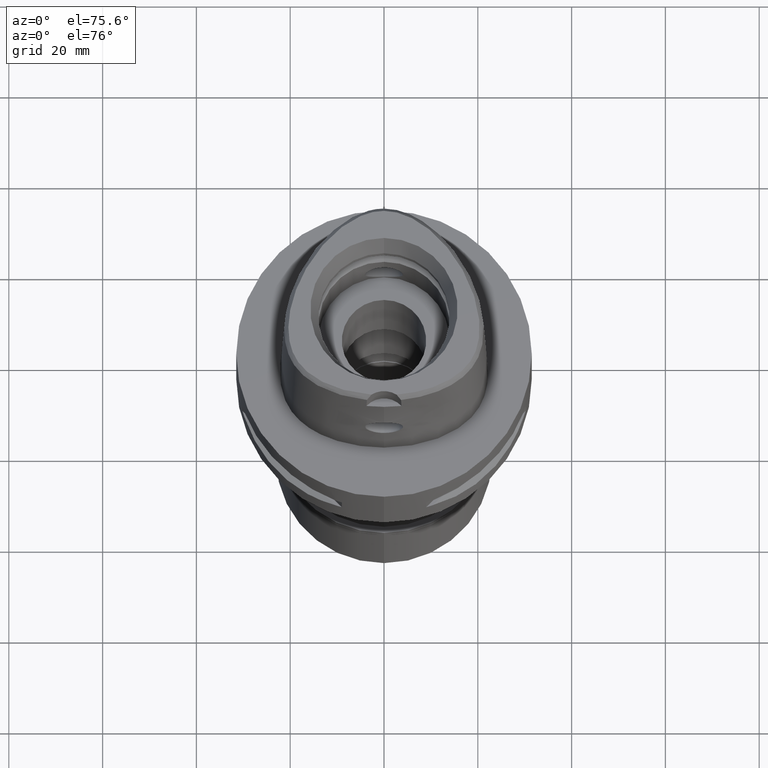
[diagram: clean part render]
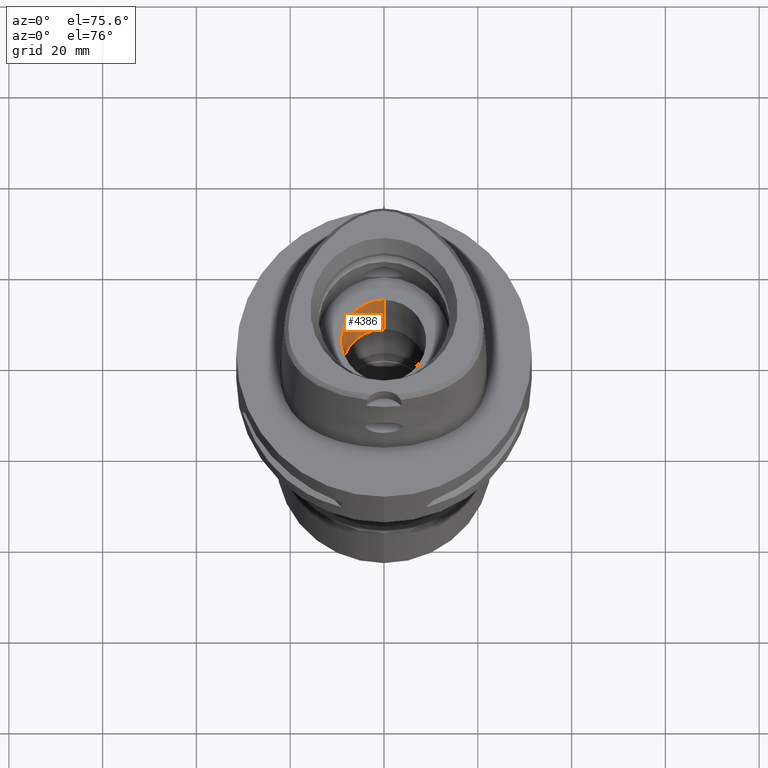
[diagram: same view with one face highlighted and labeled with its STEP entity id]
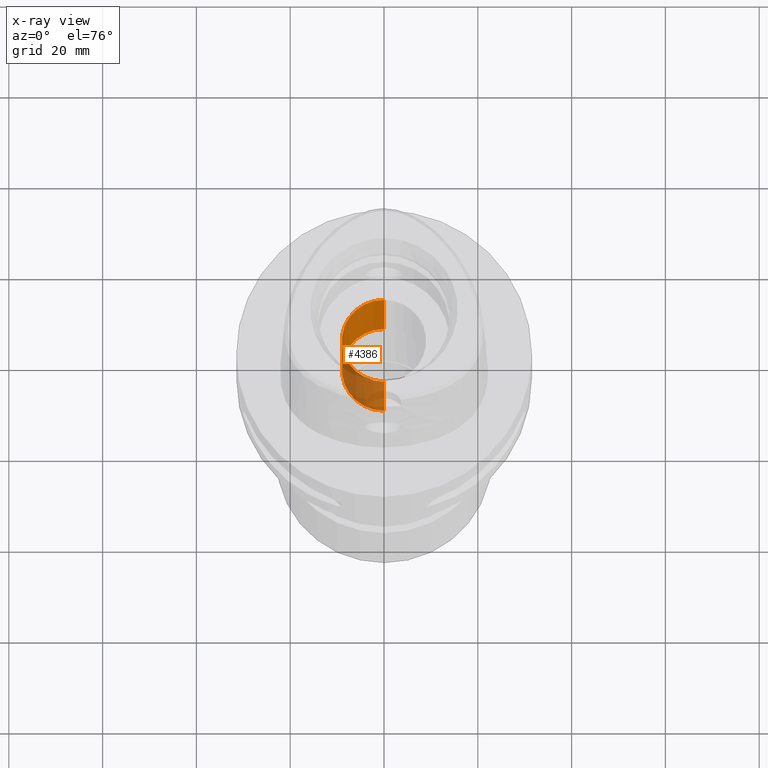
[diagram: x-ray of the same camera — body ghosted, the highlighted face saturated]
A machine part, auxiliary view. The second image highlights one B-rep face of the part: STEP entity #4386.
The next image is the same camera in x-ray: the body ghosted, the highlighted face saturated — about 45% of this face is hidden behind the body in this view.
In plain terms, the highlighted cylindrical surface (partial cylindrical patch) has radius 9 mm, axis along (0, 0, -1).
Its self-contained STEP definition (entity closure, byte-faithful):
#66 = CARTESIAN_POINT ( 'NONE',  ( 0.0000000000000000000, 0.0000000000000000000, 39.89999999999999858 ) ) ;
#152 = EDGE_CURVE ( 'NONE', #265, #4076, #370, .T. ) ;
#265 = VERTEX_POINT ( 'NONE', #2532 ) ;
#330 = EDGE_CURVE ( 'NONE', #2327, #4796, #3952, .T. ) ;
#370 = LINE ( 'NONE', #1901, #1014 ) ;
#399 = ORIENTED_EDGE ( 'NONE', *, *, #1331, .T. ) ;
#552 = DIRECTION ( 'NONE',  ( 0.0000000000000000000, 0.0000000000000000000, -1.000000000000000000 ) ) ;
#644 = EDGE_LOOP ( 'NONE', ( #2249, #4102, #399, #1155 ) ) ;
#797 = DIRECTION ( 'NONE',  ( 0.0000000000000000000, 0.0000000000000000000, -1.000000000000000000 ) ) ;
#821 = EDGE_CURVE ( 'NONE', #4076, #2327, #2820, .T. ) ;
#1003 = CARTESIAN_POINT ( 'NONE',  ( 0.0000000000000000000, -9.000000000000000000, 11.00000000000000000 ) ) ;
#1014 = VECTOR ( 'NONE', #3434, 1000.000000000000000 ) ;
#1155 = ORIENTED_EDGE ( 'NONE', *, *, #152, .T. ) ;
#1196 = DIRECTION ( 'NONE',  ( 0.0000000000000000000, -1.000000000000000000, 0.0000000000000000000 ) ) ;
#1208 = DIRECTION ( 'NONE',  ( 0.0000000000000000000, 0.0000000000000000000, 1.000000000000000000 ) ) ;
#1245 = CARTESIAN_POINT ( 'NONE',  ( 0.0000000000000000000, -9.000000000000000000, 11.00000000000000000 ) ) ;
#1331 = EDGE_CURVE ( 'NONE', #4796, #265, #2231, .T. ) ;
#1447 = CARTESIAN_POINT ( 'NONE',  ( 0.0000000000000000000, 9.000000000000000000, 11.00000000000000000 ) ) ;
#1829 = AXIS2_PLACEMENT_3D ( 'NONE', #66, #797, #1196 ) ;
#1901 = CARTESIAN_POINT ( 'NONE',  ( 0.0000000000000000000, 9.000000000000000000, -14.00000000000000000 ) ) ;
#1920 = AXIS2_PLACEMENT_3D ( 'NONE', #4339, #1208, #3209 ) ;
#2047 = CYLINDRICAL_SURFACE ( 'NONE', #1829, 9.000000000000000000 ) ;
#2231 = CIRCLE ( 'NONE', #4035, 9.000000000000000000 ) ;
#2249 = ORIENTED_EDGE ( 'NONE', *, *, #821, .T. ) ;
#2327 = VERTEX_POINT ( 'NONE', #1003 ) ;
#2361 = CARTESIAN_POINT ( 'NONE',  ( 0.0000000000000000000, 0.0000000000000000000, -14.00000000000000000 ) ) ;
#2532 = CARTESIAN_POINT ( 'NONE',  ( 0.0000000000000000000, 9.000000000000000000, -14.00000000000000000 ) ) ;
#2757 = DIRECTION ( 'NONE',  ( 0.0000000000000000000, 0.0000000000000000000, -1.000000000000000000 ) ) ;
#2820 = CIRCLE ( 'NONE', #1920, 9.000000000000000000 ) ;
#3096 = DIRECTION ( 'NONE',  ( 0.0000000000000000000, -1.000000000000000000, 0.0000000000000000000 ) ) ;
#3209 = DIRECTION ( 'NONE',  ( 0.0000000000000000000, 1.000000000000000000, 0.0000000000000000000 ) ) ;
#3434 = DIRECTION ( 'NONE',  ( 0.0000000000000000000, 0.0000000000000000000, 1.000000000000000000 ) ) ;
#3439 = VECTOR ( 'NONE', #552, 1000.000000000000000 ) ;
#3674 = CARTESIAN_POINT ( 'NONE',  ( 0.0000000000000000000, -9.000000000000000000, -14.00000000000000000 ) ) ;
#3952 = LINE ( 'NONE', #1245, #3439 ) ;
#4035 = AXIS2_PLACEMENT_3D ( 'NONE', #2361, #2757, #3096 ) ;
#4076 = VERTEX_POINT ( 'NONE', #1447 ) ;
#4102 = ORIENTED_EDGE ( 'NONE', *, *, #330, .T. ) ;
#4339 = CARTESIAN_POINT ( 'NONE',  ( 0.0000000000000000000, 0.0000000000000000000, 11.00000000000000000 ) ) ;
#4386 = ADVANCED_FACE ( 'NONE', ( #4705 ), #2047, .F. ) ;
#4705 = FACE_OUTER_BOUND ( 'NONE', #644, .T. ) ;
#4796 = VERTEX_POINT ( 'NONE', #3674 ) ;